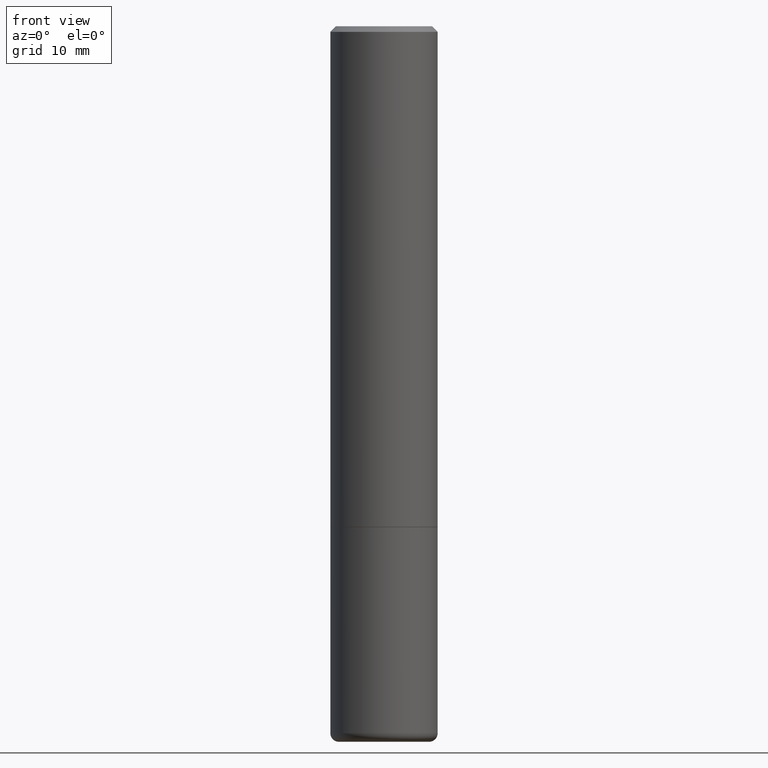
[diagram: clean part render]
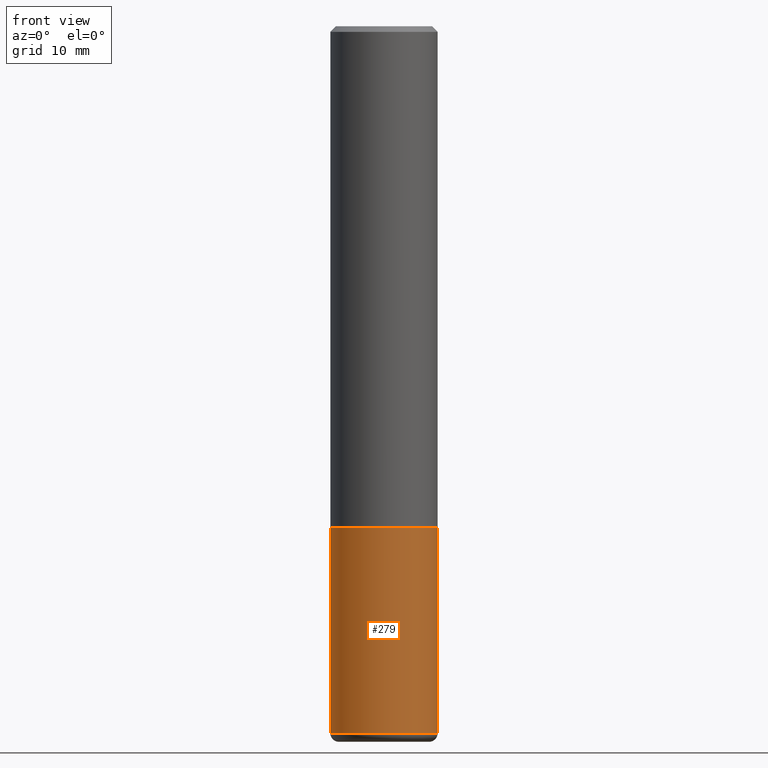
[diagram: same view with one face highlighted and labeled with its STEP entity id]
A machine part, front view. The second image highlights one B-rep face of the part: STEP entity #279.
In plain terms, the highlighted cylindrical surface (partial cylindrical patch) has radius 4.7625 mm, axis along (-0, 0, 1).
Its self-contained STEP definition (entity closure, byte-faithful):
#34 = CARTESIAN_POINT ( 'NONE',  ( -0.1875000000000000278, -6.034757995408850668E-15, -1.750000000000000222 ) ) ;
#46 = CARTESIAN_POINT ( 'NONE',  ( 6.040307951277287977E-29, -8.623958906942569995E-15, -2.470000000000000195 ) ) ;
#47 = CARTESIAN_POINT ( 'NONE',  ( -0.1874999999999999722, -7.291691277392382147E-15, -2.470000000000000195 ) ) ;
#50 = CARTESIAN_POINT ( 'NONE',  ( 0.1875000000000000278, -7.419397845041680468E-15, -1.750000000000000222 ) ) ;
#54 = EDGE_LOOP ( 'NONE', ( #66, #231, #142, #373 ) ) ;
#66 = ORIENTED_EDGE ( 'NONE', *, *, #391, .F. ) ;
#74 = DIRECTION ( 'NONE',  ( -2.445468806185136877E-29, 3.491481338843145188E-15, 1.000000000000000000 ) ) ;
#75 = CIRCLE ( 'NONE', #364, 0.1875000000000000278 ) ;
#79 = CARTESIAN_POINT ( 'NONE',  ( 0.1874999999999999722, -9.933264409008746581E-15, -2.470000000000000195 ) ) ;
#90 = VECTOR ( 'NONE', #74, 39.37007874015748143 ) ;
#109 = VECTOR ( 'NONE', #189, 39.37007874015748143 ) ;
#129 = DIRECTION ( 'NONE',  ( -2.445468806185136597E-29, 3.491481338843145583E-15, 1.000000000000000000 ) ) ;
#133 = CIRCLE ( 'NONE', #218, 0.1875000000000000278 ) ;
#138 = EDGE_CURVE ( 'NONE', #389, #347, #133, .T. ) ;
#142 = ORIENTED_EDGE ( 'NONE', *, *, #286, .T. ) ;
#149 = CYLINDRICAL_SURFACE ( 'NONE', #203, 0.1875000000000000278 ) ;
#185 = EDGE_CURVE ( 'NONE', #188, #301, #75, .T. ) ;
#188 = VERTEX_POINT ( 'NONE', #47 ) ;
#189 = DIRECTION ( 'NONE',  ( -2.445468806185136877E-29, 3.491481338843145188E-15, 1.000000000000000000 ) ) ;
#203 = AXIS2_PLACEMENT_3D ( 'NONE', #313, #376, #285 ) ;
#218 = AXIS2_PLACEMENT_3D ( 'NONE', #335, #276, #340 ) ;
#221 = FACE_OUTER_BOUND ( 'NONE', #54, .T. ) ;
#231 = ORIENTED_EDGE ( 'NONE', *, *, #185, .T. ) ;
#276 = DIRECTION ( 'NONE',  ( -2.445468806185136597E-29, 3.491481338843145583E-15, 1.000000000000000000 ) ) ;
#279 = ADVANCED_FACE ( 'NONE', ( #221 ), #149, .T. ) ;
#285 = DIRECTION ( 'NONE',  ( 1.000000000000000000, -6.982962677686265922E-15, 4.876176775795935793E-29 ) ) ;
#286 = EDGE_CURVE ( 'NONE', #301, #347, #341, .T. ) ;
#297 = LINE ( 'NONE', #350, #109 ) ;
#301 = VERTEX_POINT ( 'NONE', #79 ) ;
#307 = DIRECTION ( 'NONE',  ( 1.000000000000000000, -6.982962677686266711E-15, 0.000000000000000000 ) ) ;
#313 = CARTESIAN_POINT ( 'NONE',  ( 0.000000000000000000, 0.000000000000000000, 0.000000000000000000 ) ) ;
#335 = CARTESIAN_POINT ( 'NONE',  ( 4.279570410823989044E-29, -6.110092342975505460E-15, -1.750000000000000222 ) ) ;
#340 = DIRECTION ( 'NONE',  ( 1.000000000000000000, -6.982962677686266711E-15, 0.000000000000000000 ) ) ;
#341 = LINE ( 'NONE', #409, #90 ) ;
#347 = VERTEX_POINT ( 'NONE', #50 ) ;
#350 = CARTESIAN_POINT ( 'NONE',  ( -0.1875000000000000278, 1.332267629550188046E-15, -9.223003294227947991E-30 ) ) ;
#364 = AXIS2_PLACEMENT_3D ( 'NONE', #46, #129, #307 ) ;
#373 = ORIENTED_EDGE ( 'NONE', *, *, #138, .F. ) ;
#376 = DIRECTION ( 'NONE',  ( -2.445468806185136597E-29, 3.491481338843145583E-15, 1.000000000000000000 ) ) ;
#389 = VERTEX_POINT ( 'NONE', #34 ) ;
#391 = EDGE_CURVE ( 'NONE', #188, #389, #297, .T. ) ;
#409 = CARTESIAN_POINT ( 'NONE',  ( 0.1875000000000000278, -1.309305502066175008E-15, 9.142831454617381013E-30 ) ) ;